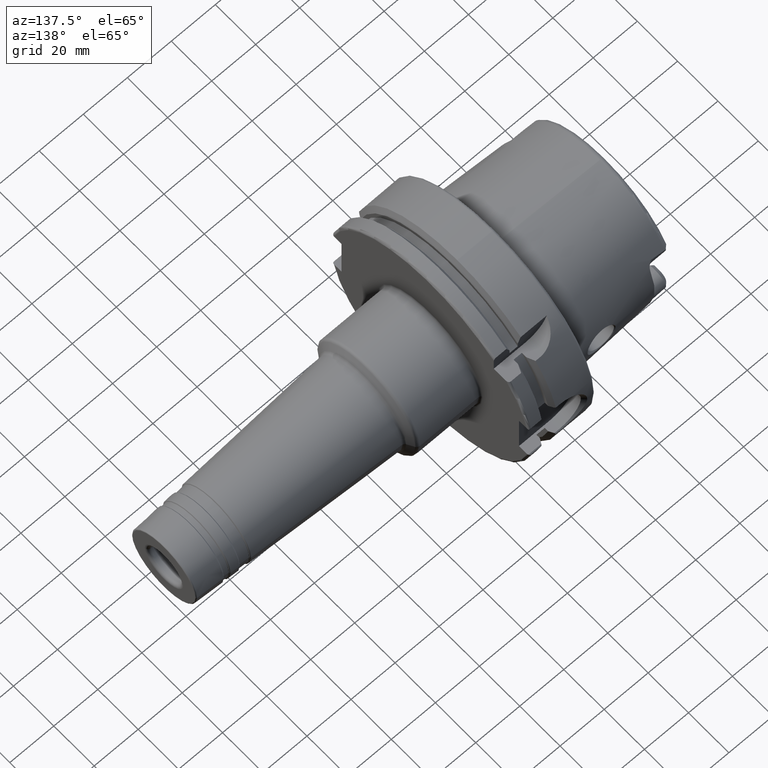
[diagram: clean part render]
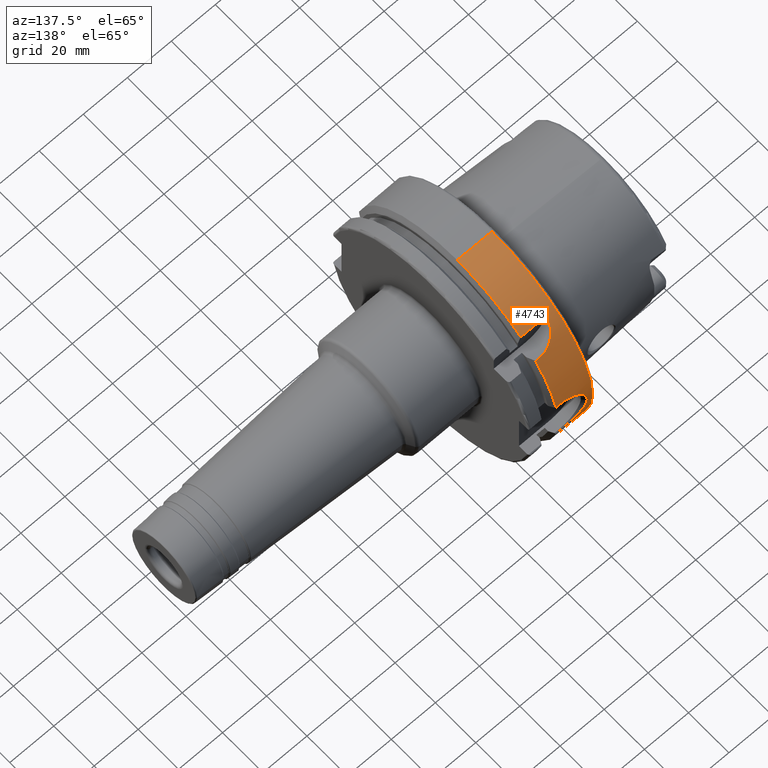
[diagram: same view with one face highlighted and labeled with its STEP entity id]
A machine part, auxiliary view. The second image highlights one B-rep face of the part: STEP entity #4743.
In plain terms, the highlighted cylindrical surface (partial cylindrical patch) has radius 50 mm, axis along (1, 0, 0).
Its self-contained STEP definition (entity closure, byte-faithful):
#1281=CARTESIAN_POINT('',(3.937007874016E-2,0.E0,0.E0));
#1282=DIRECTION('',(-1.E0,0.E0,0.E0));
#1283=DIRECTION('',(0.E0,0.E0,1.E0));
#1284=AXIS2_PLACEMENT_3D('',#1281,#1282,#1283);
#1286=CARTESIAN_POINT('',(4.921259842520E-1,0.E0,-1.968503937008E0));
#1287=CARTESIAN_POINT('',(4.921259842520E-1,1.487755397095E-2,
-1.968503937008E0));
#1288=CARTESIAN_POINT('',(4.888000430980E-1,4.378350949228E-2,
-1.968170810467E0));
#1289=CARTESIAN_POINT('',(4.743573448433E-1,8.534883011625E-2,
-1.966787784192E0));
#1290=CARTESIAN_POINT('',(4.512231868621E-1,1.227922578953E-1,
-1.964773152993E0));
#1291=CARTESIAN_POINT('',(4.206903078688E-1,1.546808972169E-1,
-1.962487912278E0));
#1292=CARTESIAN_POINT('',(3.834839790776E-1,1.800676164825E-1,
-1.960289546965E0));
#1293=CARTESIAN_POINT('',(3.423081583654E-1,1.972687506201E-1,
-1.958608064271E0));
#1294=CARTESIAN_POINT('',(2.982249186556E-1,2.060843141876E-1,
-1.957687338597E0));
#1295=CARTESIAN_POINT('',(2.538193988381E-1,2.061662794009E-1,
-1.957678556956E0));
#1296=CARTESIAN_POINT('',(2.097295519021E-1,1.975293840192E-1,
-1.958581456942E0));
#1297=CARTESIAN_POINT('',(1.684683779630E-1,1.804801869502E-1,
-1.960250951301E0));
#1298=CARTESIAN_POINT('',(1.312386875742E-1,1.553013083890E-1,
-1.962437877701E0));
#1299=CARTESIAN_POINT('',(1.006063363154E-1,1.236156641506E-1,
-1.964720333073E0));
#1300=CARTESIAN_POINT('',(7.728235796883E-2,8.631658804448E-2,
-1.966745279989E0));
#1301=CARTESIAN_POINT('',(6.252769516914E-2,4.457848654822E-2,
-1.968156059355E0));
#1302=CARTESIAN_POINT('',(5.905511811024E-2,1.519478922116E-2,
-1.968503937008E0));
#1303=CARTESIAN_POINT('',(5.905511811024E-2,0.E0,-1.968503937008E0));
#1305=CARTESIAN_POINT('',(6.595434935358E-1,0.E0,0.E0));
#1306=DIRECTION('',(1.E0,0.E0,0.E0));
#1307=DIRECTION('',(0.E0,0.E0,-1.E0));
#1308=AXIS2_PLACEMENT_3D('',#1305,#1306,#1307);
#1310=DIRECTION('',(1.E0,0.E0,0.E0));
#1311=VECTOR('',#1310,6.899231243340E-2);
#1312=CARTESIAN_POINT('',(5.905511811024E-1,1.925405964459E0,
-4.096579329633E-1));
#1313=LINE('',#1312,#1311);
#1314=CARTESIAN_POINT('',(5.905511811024E-1,1.925405964459E0,
4.096579329633E-1));
#1315=CARTESIAN_POINT('',(5.590929083365E-1,1.925405964459E0,
4.096579329633E-1));
#1316=CARTESIAN_POINT('',(4.977328881992E-1,1.926659967E0,4.038292576791E-1));
#1317=CARTESIAN_POINT('',(4.084518320537E-1,1.931967521745E0,
3.780149056871E-1));
#1318=CARTESIAN_POINT('',(3.276575253919E-1,1.939724554276E0,
3.365629125002E-1));
#1319=CARTESIAN_POINT('',(2.587205444139E-1,1.948494611396E0,
2.821156705378E-1));
#1320=CARTESIAN_POINT('',(2.043983245791E-1,1.956770614536E0,
2.181576014587E-1));
#1321=CARTESIAN_POINT('',(1.657721079433E-1,1.963365016637E0,
1.481421375290E-1));
#1322=CARTESIAN_POINT('',(1.428475932459E-1,1.967551850385E0,
7.477802232039E-2));
#1323=CARTESIAN_POINT('',(1.352692056370E-1,1.968979963815E0,
-8.105117427215E-8));
#1324=CARTESIAN_POINT('',(1.428472377499E-1,1.967551916401E0,
-7.477609136358E-2));
#1325=CARTESIAN_POINT('',(1.657719658920E-1,1.963365040456E0,
-1.481421022953E-1));
#1326=CARTESIAN_POINT('',(2.043983521209E-1,1.956770610213E0,
-2.181575855516E-1));
#1327=CARTESIAN_POINT('',(2.587204419770E-1,1.948494626358E0,
-2.821155757743E-1));
#1328=CARTESIAN_POINT('',(3.276574541792E-1,1.939724561474E0,
-3.365628718055E-1));
#1329=CARTESIAN_POINT('',(4.084517758743E-1,1.931967526934E0,
-3.780148792903E-1));
#1330=CARTESIAN_POINT('',(4.977327452568E-1,1.926659972805E0,
-4.038292301955E-1));
#1331=CARTESIAN_POINT('',(5.590928487399E-1,1.925405964459E0,
-4.096579329633E-1));
#1332=CARTESIAN_POINT('',(5.905511811024E-1,1.925405964459E0,
-4.096579329633E-1));
#1334=DIRECTION('',(1.E0,0.E0,0.E0));
#1335=VECTOR('',#1334,6.899231243340E-2);
#1336=CARTESIAN_POINT('',(5.905511811024E-1,1.925405964459E0,
4.096579329633E-1));
#1337=LINE('',#1336,#1335);
#1338=CARTESIAN_POINT('',(6.595434935358E-1,0.E0,0.E0));
#1339=DIRECTION('',(1.E0,0.E0,0.E0));
#1340=DIRECTION('',(0.E0,9.781062299454E-1,2.081062299454E-1));
#1341=AXIS2_PLACEMENT_3D('',#1338,#1339,#1340);
#1343=DIRECTION('',(1.E0,0.E0,0.E0));
#1344=VECTOR('',#1343,8.328758802395E-2);
#1345=CARTESIAN_POINT('',(5.762559055118E-1,1.528730576012E0,1.240157480315E0));
#1346=LINE('',#1345,#1344);
#1347=CARTESIAN_POINT('',(1.968504779841E-1,1.240157480315E0,1.528730576012E0));
#1348=CARTESIAN_POINT('',(1.990508661218E-1,1.249946513943E0,1.520789383843E0));
#1349=CARTESIAN_POINT('',(2.040136388883E-1,1.269253091773E0,1.504815249738E0));
#1350=CARTESIAN_POINT('',(2.132766307594E-1,1.297376452912E0,1.480633346768E0));
#1351=CARTESIAN_POINT('',(2.245387091149E-1,1.324681109188E0,1.456250891011E0));
#1352=CARTESIAN_POINT('',(2.379617997547E-1,1.351069035155E0,1.431798020940E0));
#1353=CARTESIAN_POINT('',(2.539567303755E-1,1.376809675914E0,1.407064667178E0));
#1354=CARTESIAN_POINT('',(2.733791947949E-1,1.402375883926E0,1.381589185744E0));
#1355=CARTESIAN_POINT('',(2.972119510669E-1,1.427834840482E0,1.355269171471E0));
#1356=CARTESIAN_POINT('',(3.271879663020E-1,1.453282078932E0,1.327945165537E0));
#1357=CARTESIAN_POINT('',(3.641913525180E-1,1.477464546037E0,1.300967322566E0));
#1358=CARTESIAN_POINT('',(4.092986408693E-1,1.499096295988E0,1.275940802383E0));
#1359=CARTESIAN_POINT('',(4.620514412398E-1,1.516144496196E0,1.255575128496E0));
#1360=CARTESIAN_POINT('',(5.196259369222E-1,1.526580319681E0,1.242816321625E0));
#1361=CARTESIAN_POINT('',(5.572813962681E-1,1.528730576012E0,1.240157480315E0));
#1362=CARTESIAN_POINT('',(5.762559055118E-1,1.528730576012E0,1.240157480315E0));
#1364=DIRECTION('',(1.E0,0.E0,0.E0));
#1365=VECTOR('',#1364,4.626930155517E-1);
#1366=CARTESIAN_POINT('',(1.968504779841E-1,1.240157480315E0,1.528730576012E0));
#1367=LINE('',#1366,#1365);
#1368=CARTESIAN_POINT('',(6.595434935358E-1,0.E0,0.E0));
#1369=DIRECTION('',(1.E0,0.E0,0.E0));
#1370=DIRECTION('',(0.E0,6.3E-1,7.765951326142E-1));
#1371=AXIS2_PLACEMENT_3D('',#1368,#1369,#1370);
#1402=DIRECTION('',(-1.E0,-1.563594914014E-13,0.E0));
#1403=VECTOR('',#1402,6.201734147956E-1);
#1404=CARTESIAN_POINT('',(6.595434935358E-1,0.E0,1.968503937008E0));
#1405=LINE('',#1404,#1403);
#1454=DIRECTION('',(-1.E0,0.E0,0.E0));
#1455=VECTOR('',#1454,1.674175092838E-1);
#1456=CARTESIAN_POINT('',(6.595434935358E-1,0.E0,-1.968503937008E0));
#1457=LINE('',#1456,#1455);
#1477=DIRECTION('',(-1.E0,-6.302074313791E-12,0.E0));
#1478=VECTOR('',#1477,1.968503937008E-2);
#1479=CARTESIAN_POINT('',(5.905511811024E-2,0.E0,-1.968503937008E0));
#1480=LINE('',#1479,#1478);
#2928=CARTESIAN_POINT('',(1.968504779841E-1,1.240157480315E0,1.528730576012E0));
#2929=CARTESIAN_POINT('',(6.595434935358E-1,1.240157480315E0,1.528730576012E0));
#2930=VERTEX_POINT('',#2928);
#2931=VERTEX_POINT('',#2929);
#2932=CARTESIAN_POINT('',(5.762559055118E-1,1.528730576012E0,1.240157480315E0));
#2933=CARTESIAN_POINT('',(6.595434935358E-1,1.528730576012E0,1.240157480315E0));
#2934=VERTEX_POINT('',#2932);
#2935=VERTEX_POINT('',#2933);
#2952=CARTESIAN_POINT('',(6.595434935358E-1,0.E0,1.968503937008E0));
#2953=VERTEX_POINT('',#2952);
#3103=VERTEX_POINT('',#1286);
#3104=VERTEX_POINT('',#1303);
#3109=CARTESIAN_POINT('',(6.595434935358E-1,0.E0,-1.968503937008E0));
#3110=VERTEX_POINT('',#3109);
#3133=CARTESIAN_POINT('',(5.905511811024E-1,1.925405964459E0,
4.096579329633E-1));
#3134=CARTESIAN_POINT('',(6.595434935358E-1,1.925405964459E0,
4.096579329633E-1));
#3135=VERTEX_POINT('',#3133);
#3136=VERTEX_POINT('',#3134);
#3137=VERTEX_POINT('',#1332);
#3138=CARTESIAN_POINT('',(6.595434935358E-1,1.925405964459E0,
-4.096579329633E-1));
#3139=VERTEX_POINT('',#3138);
#3175=CARTESIAN_POINT('',(3.937007874016E-2,0.E0,-1.968503937008E0));
#3176=CARTESIAN_POINT('',(3.937007874016E-2,0.E0,1.968503937008E0));
#3177=VERTEX_POINT('',#3175);
#3178=VERTEX_POINT('',#3176);
#4709=CARTESIAN_POINT('',(0.E0,0.E0,0.E0));
#4710=DIRECTION('',(1.E0,0.E0,0.E0));
#4711=DIRECTION('',(0.E0,0.E0,1.E0));
#4712=AXIS2_PLACEMENT_3D('',#4709,#4710,#4711);
#4713=CYLINDRICAL_SURFACE('',#4712,1.968503937008E0);
#4714=ORIENTED_EDGE('',*,*,#4703,.T.);
#4716=ORIENTED_EDGE('',*,*,#4715,.F.);
#4718=ORIENTED_EDGE('',*,*,#4717,.F.);
#4720=ORIENTED_EDGE('',*,*,#4719,.F.);
#4722=ORIENTED_EDGE('',*,*,#4721,.T.);
#4724=ORIENTED_EDGE('',*,*,#4723,.F.);
#4726=ORIENTED_EDGE('',*,*,#4725,.F.);
#4728=ORIENTED_EDGE('',*,*,#4727,.T.);
#4730=ORIENTED_EDGE('',*,*,#4729,.T.);
#4732=ORIENTED_EDGE('',*,*,#4731,.F.);
#4734=ORIENTED_EDGE('',*,*,#4733,.F.);
#4736=ORIENTED_EDGE('',*,*,#4735,.T.);
#4738=ORIENTED_EDGE('',*,*,#4737,.T.);
#4740=ORIENTED_EDGE('',*,*,#4739,.T.);
#4741=EDGE_LOOP('',(#4714,#4716,#4718,#4720,#4722,#4724,#4726,#4728,#4730,#4732,
#4734,#4736,#4738,#4740));
#4742=FACE_OUTER_BOUND('',#4741,.F.);
#4743=ADVANCED_FACE('',(#4742),#4713,.T.);
#1285=CIRCLE('',#1284,1.968503937008E0);
#1304=B_SPLINE_CURVE_WITH_KNOTS('',3,(#1286,#1287,#1288,#1289,#1290,#1291,#1292,
#1293,#1294,#1295,#1296,#1297,#1298,#1299,#1300,#1301,#1302,#1303),
.UNSPECIFIED.,.F.,.F.,(4,1,1,1,1,1,1,1,1,1,1,1,1,1,1,4),(0.E0,6.666666666667E-2,
1.333333333333E-1,2.E-1,2.666666666667E-1,3.333333333333E-1,4.E-1,
4.666666666667E-1,5.333333333333E-1,6.E-1,6.666666666667E-1,7.333333333333E-1,
8.E-1,8.666666666667E-1,9.333333333333E-1,1.E0),.UNSPECIFIED.);
#1309=CIRCLE('',#1308,1.968503937008E0);
#1333=B_SPLINE_CURVE_WITH_KNOTS('',3,(#1314,#1315,#1316,#1317,#1318,#1319,#1320,
#1321,#1322,#1323,#1324,#1325,#1326,#1327,#1328,#1329,#1330,#1331,#1332),
.UNSPECIFIED.,.F.,.F.,(4,1,1,1,1,1,1,1,1,1,1,1,1,1,1,1,4),(0.E0,6.25E-2,1.25E-1,
1.875E-1,2.5E-1,3.125E-1,3.75E-1,4.375E-1,5.E-1,5.625E-1,6.25E-1,6.875E-1,
7.5E-1,8.125E-1,8.75E-1,9.375E-1,1.E0),.UNSPECIFIED.);
#1342=CIRCLE('',#1341,1.968503937008E0);
#1363=B_SPLINE_CURVE_WITH_KNOTS('',3,(#1347,#1348,#1349,#1350,#1351,#1352,#1353,
#1354,#1355,#1356,#1357,#1358,#1359,#1360,#1361,#1362),.UNSPECIFIED.,.F.,.F.,(4,
1,1,1,1,1,1,1,1,1,1,1,1,4),(0.E0,7.692307692308E-2,1.538461538462E-1,
2.307692307692E-1,3.076923076923E-1,3.846153846154E-1,4.615384615385E-1,
5.384615384615E-1,6.153846153846E-1,6.923076923077E-1,7.692307692308E-1,
8.461538461538E-1,9.230769230769E-1,1.E0),.UNSPECIFIED.);
#1372=CIRCLE('',#1371,1.968503937008E0);
#4703=EDGE_CURVE('',#3178,#3177,#1285,.T.);
#4715=EDGE_CURVE('',#3104,#3177,#1480,.T.);
#4717=EDGE_CURVE('',#3103,#3104,#1304,.T.);
#4719=EDGE_CURVE('',#3110,#3103,#1457,.T.);
#4721=EDGE_CURVE('',#3110,#3139,#1309,.T.);
#4723=EDGE_CURVE('',#3137,#3139,#1313,.T.);
#4725=EDGE_CURVE('',#3135,#3137,#1333,.T.);
#4727=EDGE_CURVE('',#3135,#3136,#1337,.T.);
#4729=EDGE_CURVE('',#3136,#2935,#1342,.T.);
#4731=EDGE_CURVE('',#2934,#2935,#1346,.T.);
#4733=EDGE_CURVE('',#2930,#2934,#1363,.T.);
#4735=EDGE_CURVE('',#2930,#2931,#1367,.T.);
#4737=EDGE_CURVE('',#2931,#2953,#1372,.T.);
#4739=EDGE_CURVE('',#2953,#3178,#1405,.T.);